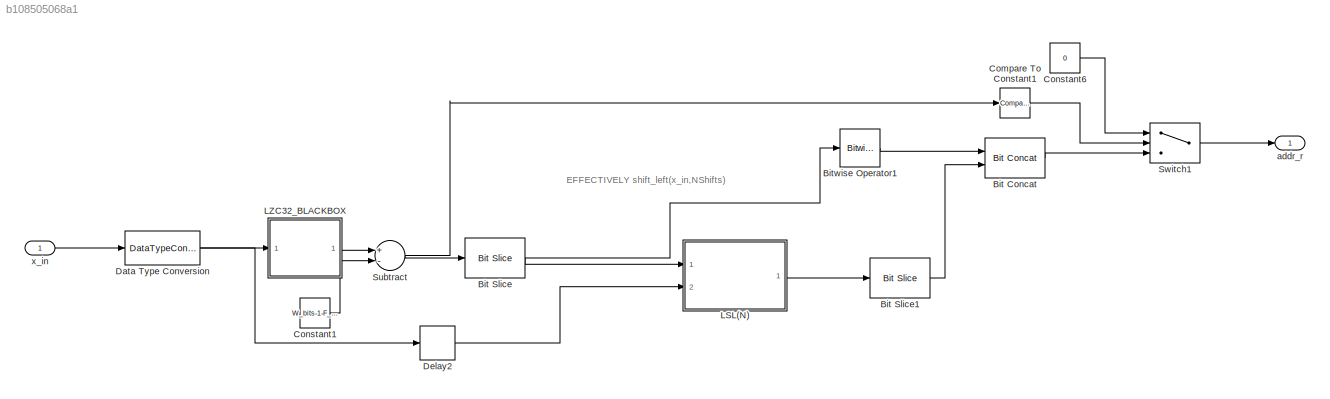
MODEL slx_b108505068a1
KIND model
CONFIG AbsTol = auto
CONFIG EnableMultiTasking = off
CONFIG FixedStep = auto
CONFIG InitFcn = clear;\nDIAGNOSTIC = 0;  %% flag to give more information as simulation proceeds such as comments & plots\nCALIB_DIAGNOSTIC =  0; %% flag to give more information about calibration of filterbank due to overlap between filters: Mar 2016\nPRESCRIPT = 1;  %% flag to plot requested versus achieved insertion gains (esp for 125-250 Hz region).\nipfiledigrms = -36; %% input file RMS in dB for 65 dB SPL equiv...<+3607ch>
CONFIG MaxStep = auto
CONFIG MinStep = auto
CONFIG RelTol = 1e-3
CONFIG SampleTimeConstraint = Unconstrained
CONFIG Solver = VariableStepAuto
CONFIG SolverName = VariableStepAuto
CONFIG StartTime = 0.0
CONFIG StopFcn = proc_sig = double(out.proc_sig.data(:));\n%alignedSigs = double(out.alignedSigs.data(:));\n[opwav, stop_ok] = savewavfile(opfiledigrms, ipfiledigrms, proc_sig, Fs, nbits, NStreams);\n\nload('SweepSimOutput.mat')\nX_out_Sweep_Sim(Volume,:) = proc_sig;\nsave('SweepSimOutput.mat', 'X_out_Sweep_Sim');
CONFIG StopTime = 10.0
BLOCK [Reference] Bit Concat  REF=hdlsllib/Logic and Bit
Operations/Bit Concat
  Ports = [2, 1]
  SourceBlock = hdlsllib/Logic and Bit\nOperations/Bit Concat
  SourceProductBaseCode = SL
  SourceProductName = Simulink
  SourceType = Bit Concat
BLOCK [Reference] Bit Slice  REF=hdlsllib/Logic and Bit
Operations/Bit Slice
  Ports = [1, 1]
  SourceBlock = hdlsllib/Logic and Bit\nOperations/Bit Slice
  SourceProductBaseCode = SL
  SourceProductName = Simulink
  SourceType = Bit Slice
BLOCK [Reference] Bit Slice1  REF=hdlsllib/Logic and Bit
Operations/Bit Slice
  Ports = [1, 1]
  SourceBlock = hdlsllib/Logic and Bit\nOperations/Bit Slice
  SourceProductBaseCode = SL
  SourceProductName = Simulink
  SourceType = Bit Slice
BLOCK [Reference] Bitwise Operator1  REF=simulink/Logic and Bit
Operations/Bitwise
Operator
  Ports = [1, 1]
  SourceBlock = simulink/Logic and Bit\nOperations/Bitwise\nOperator
  SourceProductBaseCode = SL
  SourceProductName = Simulink
  SourceType = Bitwise Operator
BLOCK [Reference] Compare To Constant1  REF=simulink/Logic and Bit
Operations/Compare
To Constant
  Ports = [1, 1]
  SourceBlock = simulink/Logic and Bit\nOperations/Compare\nTo Constant
  SourceProductBaseCode = SL
  SourceProductName = Simulink
  SourceType = Compare To Constant
BLOCK [Constant] Constant1
  OutDataTypeStr = fixdt(0,6,0)
  SampleTime = -1
  Value = W_bits-1-F_bits
BLOCK [Constant] Constant6
  OutDataTypeStr = fixdt(0,9,0)
  SampleTime = -1
  Value = 0
BLOCK [DataTypeConversion] Data Type Conversion
  OutDataTypeStr = fixdt(0,W_bits,F_bits)
  RndMeth = Floor
  SaturateOnIntegerOverflow = off
BLOCK [Delay] Delay2
  DelayLength = 1
  InputPortMap = u0
  Ports = [1, 1]
  SampleTime = Ts_system
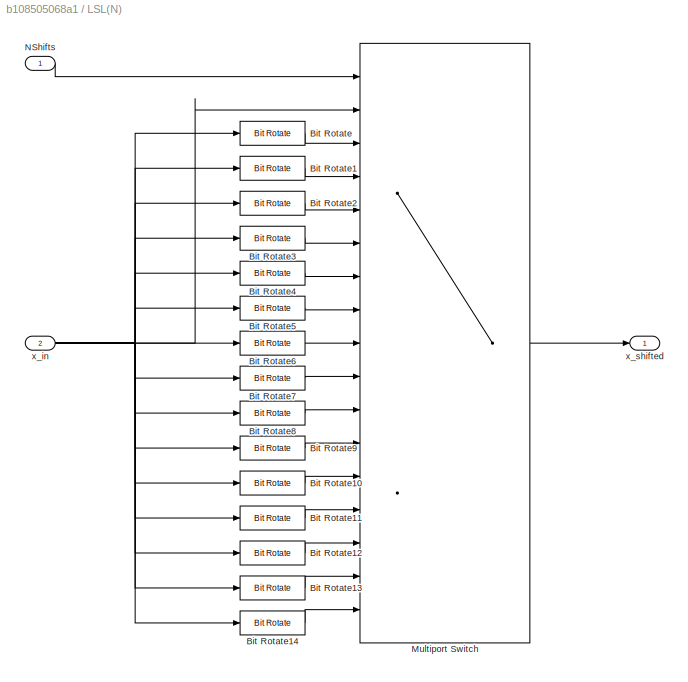
BLOCK [SubSystem] LSL(N)
  Ports = [2, 1]
  RequestExecContextInheritance = off
BLOCK [Reference] LSL(N)/Bit Rotate  REF=hdlsllib/Logic and Bit
Operations/Bit Rotate
  Ports = [1, 1]
  SourceBlock = hdlsllib/Logic and Bit\nOperations/Bit Rotate
  SourceProductBaseCode = SL
  SourceProductName = Simulink
  SourceType = Bit Rotate
BLOCK [Reference] LSL(N)/Bit Rotate1  REF=hdlsllib/Logic and Bit
Operations/Bit Rotate
  Ports = [1, 1]
  SourceBlock = hdlsllib/Logic and Bit\nOperations/Bit Rotate
  SourceProductBaseCode = SL
  SourceProductName = Simulink
  SourceType = Bit Rotate
BLOCK [Reference] LSL(N)/Bit Rotate10  REF=hdlsllib/Logic and Bit
Operations/Bit Rotate
  Ports = [1, 1]
  SourceBlock = hdlsllib/Logic and Bit\nOperations/Bit Rotate
  SourceProductBaseCode = SL
  SourceProductName = Simulink
  SourceType = Bit Rotate
BLOCK [Reference] LSL(N)/Bit Rotate11  REF=hdlsllib/Logic and Bit
Operations/Bit Rotate
  Ports = [1, 1]
  SourceBlock = hdlsllib/Logic and Bit\nOperations/Bit Rotate
  SourceProductBaseCode = SL
  SourceProductName = Simulink
  SourceType = Bit Rotate
BLOCK [Reference] LSL(N)/Bit Rotate12  REF=hdlsllib/Logic and Bit
Operations/Bit Rotate
  Ports = [1, 1]
  SourceBlock = hdlsllib/Logic and Bit\nOperations/Bit Rotate
  SourceProductBaseCode = SL
  SourceProductName = Simulink
  SourceType = Bit Rotate
BLOCK [Reference] LSL(N)/Bit Rotate13  REF=hdlsllib/Logic and Bit
Operations/Bit Rotate
  Ports = [1, 1]
  SourceBlock = hdlsllib/Logic and Bit\nOperations/Bit Rotate
  SourceProductBaseCode = SL
  SourceProductName = Simulink
  SourceType = Bit Rotate
BLOCK [Reference] LSL(N)/Bit Rotate14  REF=hdlsllib/Logic and Bit
Operations/Bit Rotate
  Ports = [1, 1]
  SourceBlock = hdlsllib/Logic and Bit\nOperations/Bit Rotate
  SourceProductBaseCode = SL
  SourceProductName = Simulink
  SourceType = Bit Rotate
BLOCK [Reference] LSL(N)/Bit Rotate2  REF=hdlsllib/Logic and Bit
Operations/Bit Rotate
  Ports = [1, 1]
  SourceBlock = hdlsllib/Logic and Bit\nOperations/Bit Rotate
  SourceProductBaseCode = SL
  SourceProductName = Simulink
  SourceType = Bit Rotate
BLOCK [Reference] LSL(N)/Bit Rotate3  REF=hdlsllib/Logic and Bit
Operations/Bit Rotate
  Ports = [1, 1]
  SourceBlock = hdlsllib/Logic and Bit\nOperations/Bit Rotate
  SourceProductBaseCode = SL
  SourceProductName = Simulink
  SourceType = Bit Rotate
BLOCK [Reference] LSL(N)/Bit Rotate4  REF=hdlsllib/Logic and Bit
Operations/Bit Rotate
  Ports = [1, 1]
  SourceBlock = hdlsllib/Logic and Bit\nOperations/Bit Rotate
  SourceProductBaseCode = SL
  SourceProductName = Simulink
  SourceType = Bit Rotate
BLOCK [Reference] LSL(N)/Bit Rotate5  REF=hdlsllib/Logic and Bit
Operations/Bit Rotate
  Ports = [1, 1]
  SourceBlock = hdlsllib/Logic and Bit\nOperations/Bit Rotate
  SourceProductBaseCode = SL
  SourceProductName = Simulink
  SourceType = Bit Rotate
BLOCK [Reference] LSL(N)/Bit Rotate6  REF=hdlsllib/Logic and Bit
Operations/Bit Rotate
  Ports = [1, 1]
  SourceBlock = hdlsllib/Logic and Bit\nOperations/Bit Rotate
  SourceProductBaseCode = SL
  SourceProductName = Simulink
  SourceType = Bit Rotate
BLOCK [Reference] LSL(N)/Bit Rotate7  REF=hdlsllib/Logic and Bit
Operations/Bit Rotate
  Ports = [1, 1]
  SourceBlock = hdlsllib/Logic and Bit\nOperations/Bit Rotate
  SourceProductBaseCode = SL
  SourceProductName = Simulink
  SourceType = Bit Rotate
BLOCK [Reference] LSL(N)/Bit Rotate8  REF=hdlsllib/Logic and Bit
Operations/Bit Rotate
  Ports = [1, 1]
  SourceBlock = hdlsllib/Logic and Bit\nOperations/Bit Rotate
  SourceProductBaseCode = SL
  SourceProductName = Simulink
  SourceType = Bit Rotate
BLOCK [Reference] LSL(N)/Bit Rotate9  REF=hdlsllib/Logic and Bit
Operations/Bit Rotate
  Ports = [1, 1]
  SourceBlock = hdlsllib/Logic and Bit\nOperations/Bit Rotate
  SourceProductBaseCode = SL
  SourceProductName = Simulink
  SourceType = Bit Rotate
BLOCK [MultiPortSwitch] LSL(N)/Multiport Switch
  DataPortOrder = Zero-based contiguous
  DiagnosticForDefault = Warning
  InputSameDT = off
  Inputs = 16
  Ports = [17, 1]
  SaturateOnIntegerOverflow = off
  zeroidx = on
BLOCK [Inport] LSL(N)/NShifts
  IconDisplay = Port number
  OutDataTypeStr = fixdt(0, 4, 0)
  PortDimensions = 1
  SampleTime = 2.08333333333333e-05
BLOCK [Inport] LSL(N)/x_in
  IconDisplay = Port number
  OutDataTypeStr = fixdt(0, 32, 28)
  Port = 2
  PortDimensions = 1
  SampleTime = 2.08333333333333e-05
BLOCK [Outport] LSL(N)/x_shifted
  IconDisplay = Port number
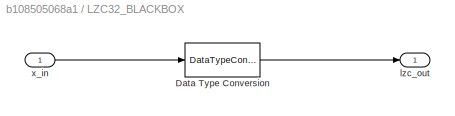
BLOCK [SubSystem] LZC32_BLACKBOX
  Ports = [1, 1]
  RequestExecContextInheritance = off
BLOCK [DataTypeConversion] LZC32_BLACKBOX/Data Type Conversion
  OutDataTypeStr = fixdt(0,6,0)
  RndMeth = Floor
  SaturateOnIntegerOverflow = off
BLOCK [Outport] LZC32_BLACKBOX/lzc_out
  IconDisplay = Port number
BLOCK [Inport] LZC32_BLACKBOX/x_in
  IconDisplay = Port number
  OutDataTypeStr = fixdt(0, 32, 28)
  PortDimensions = 1
  SampleTime = 2.08333333333333e-05
BLOCK [Sum] Subtract
  AccumDataTypeStr = Inherit: Same as first input
  InputSameDT = off
  Inputs = +-
  Ports = [2, 1]
  SaturateOnIntegerOverflow = off
BLOCK [Switch] Switch1
  Criteria = u2 ~= 0
  InputSameDT = off
  SaturateOnIntegerOverflow = off
BLOCK [Outport] addr_r
  IconDisplay = Port number
  OutDataTypeStr = fixdt(0,9,0)
  PortDimensions = 1
  SampleTime = [2.0833333333333333e-05,0]
  SignalType = real
BLOCK [Inport] x_in
  IconDisplay = Port number
  OutDataTypeStr = fixdt(1, 32, 28)
  PortDimensions = 1
  SampleTime = 2.08333333333333e-05
  SignalType = real
ANNOTATION (root): EFFECTIVELY shift_left(x_in,NShifts)
LINE Bit Concat:1 -> Switch1:3
LINE Bit Slice1:1 -> Bit Concat:2
NET Bit Slice:1 -> Bitwise Operator1:1, LSL(N):1
LINE Bitwise Operator1:1 -> Bit Concat:1
LINE Compare To Constant1:1 -> Switch1:2
LINE Constant1:1 -> Subtract:2
LINE Constant6:1 -> Switch1:1
NET Data Type Conversion:1 -> Delay2:1, LZC32_BLACKBOX:1
LINE Delay2:1 -> LSL(N):2
LINE LSL(N)/Bit Rotate10:1 -> LSL(N)/Multiport Switch:13
LINE LSL(N)/Bit Rotate11:1 -> LSL(N)/Multiport Switch:14
LINE LSL(N)/Bit Rotate12:1 -> LSL(N)/Multiport Switch:15
LINE LSL(N)/Bit Rotate13:1 -> LSL(N)/Multiport Switch:16
LINE LSL(N)/Bit Rotate14:1 -> LSL(N)/Multiport Switch:17
LINE LSL(N)/Bit Rotate1:1 -> LSL(N)/Multiport Switch:4
LINE LSL(N)/Bit Rotate2:1 -> LSL(N)/Multiport Switch:5
LINE LSL(N)/Bit Rotate3:1 -> LSL(N)/Multiport Switch:6
LINE LSL(N)/Bit Rotate4:1 -> LSL(N)/Multiport Switch:7
LINE LSL(N)/Bit Rotate5:1 -> LSL(N)/Multiport Switch:8
LINE LSL(N)/Bit Rotate6:1 -> LSL(N)/Multiport Switch:9
LINE LSL(N)/Bit Rotate7:1 -> LSL(N)/Multiport Switch:10
LINE LSL(N)/Bit Rotate8:1 -> LSL(N)/Multiport Switch:11
LINE LSL(N)/Bit Rotate9:1 -> LSL(N)/Multiport Switch:12
LINE LSL(N)/Bit Rotate:1 -> LSL(N)/Multiport Switch:3
LINE LSL(N)/Multiport Switch:1 -> LSL(N)/x_shifted:1
LINE LSL(N)/NShifts:1 -> LSL(N)/Multiport Switch:1
NET LSL(N)/x_in:1 -> LSL(N)/Bit Rotate10:1, LSL(N)/Bit Rotate11:1, LSL(N)/Bit Rotate12:1, LSL(N)/Bit Rotate13:1, LSL(N)/Bit Rotate14:1, LSL(N)/Bit Rotate1:1, LSL(N)/Bit Rotate2:1, LSL(N)/Bit Rotate3:1, LSL(N)/Bit Rotate4:1, LSL(N)/Bit Rotate5:1, LSL(N)/Bit Rotate6:1, LSL(N)/Bit Rotate7:1, LSL(N)/Bit Rotate8:1, LSL(N)/Bit Rotate9:1, LSL(N)/Bit Rotate:1, LSL(N)/Multiport Switch:2
LINE LSL(N):1 -> Bit Slice1:1
LINE LZC32_BLACKBOX/Data Type Conversion:1 -> LZC32_BLACKBOX/lzc_out:1
LINE LZC32_BLACKBOX/x_in:1 -> LZC32_BLACKBOX/Data Type Conversion:1
LINE LZC32_BLACKBOX:1 -> Subtract:1
NET Subtract:1 -> Bit Slice:1, Compare To Constant1:1
LINE Switch1:1 -> addr_r:1
LINE x_in:1 -> Data Type Conversion:1
note: NET lines group one-source signal fan-out (src -> all destinations, sorted); 1:1 wires keep LINE
